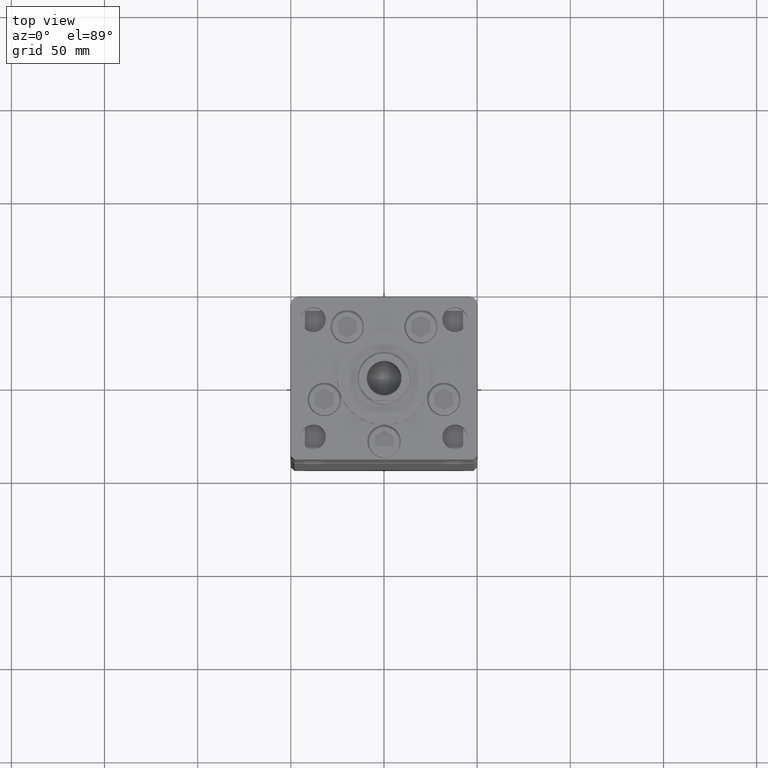
[diagram: clean part render]
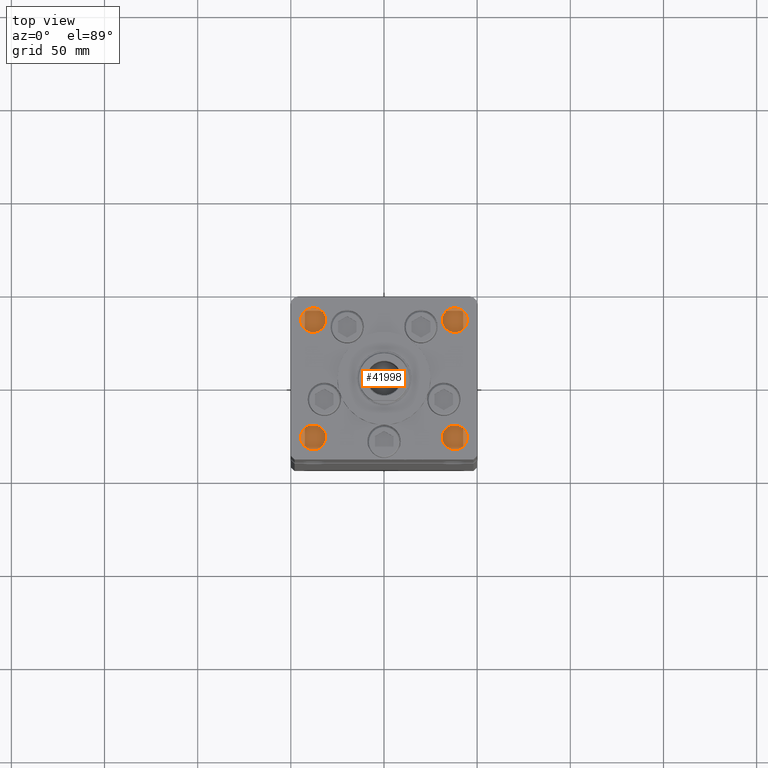
[diagram: same view with one face highlighted and labeled with its STEP entity id]
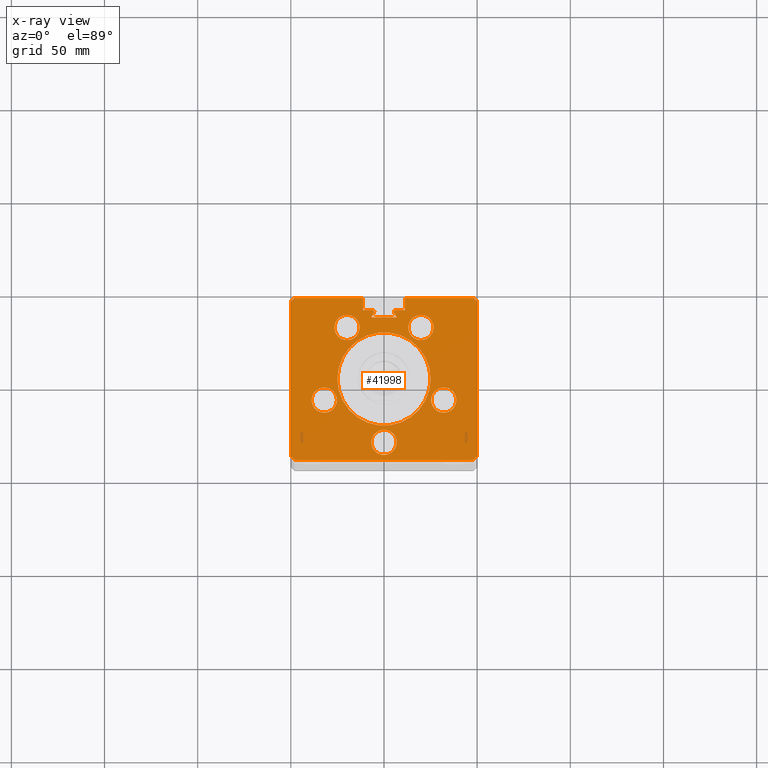
[diagram: x-ray of the same camera — body ghosted, the highlighted face saturated]
A machine part, top view. The second image highlights one B-rep face of the part: STEP entity #41998.
The next image is the same camera in x-ray: the body ghosted, the highlighted face saturated — about 0% of this face is hidden behind the body in this view.
In plain terms, the highlighted planar face has unit normal (0, 0, -1).
Its self-contained STEP definition (entity closure, byte-faithful):
#24 = DIRECTION ( 'NONE',  ( 0.000000000000000000, 0.000000000000000000, 1.000000000000000000 ) ) ;
#256 = CARTESIAN_POINT ( 'NONE',  ( -19.44653440471351757, 11.22746187336663404, 318.5000000000000000 ) ) ;
#376 = CIRCLE ( 'NONE', #26269, 25.00000000000000000 ) ;
#410 = AXIS2_PLACEMENT_3D ( 'NONE', #46332, #42313, #9001 ) ;
#682 = ORIENTED_EDGE ( 'NONE', *, *, #19699, .F. ) ;
#1000 = ORIENTED_EDGE ( 'NONE', *, *, #1067, .F. ) ;
#1067 = EDGE_CURVE ( 'NONE', #25104, #44319, #18560, .T. ) ;
#1149 = DIRECTION ( 'NONE',  ( 0.000000000000000000, 1.000000000000000000, 0.000000000000000000 ) ) ;
#1489 = CARTESIAN_POINT ( 'NONE',  ( -6.749999999999997335, -34.00000000000000000, 318.5000000000000000 ) ) ;
#1673 = LINE ( 'NONE', #37676, #43366 ) ;
#1701 = DIRECTION ( 'NONE',  ( 1.000000000000000000, 0.000000000000000000, 0.000000000000000000 ) ) ;
#1715 = VERTEX_POINT ( 'NONE', #1489 ) ;
#2158 = CARTESIAN_POINT ( 'NONE',  ( 0.000000000000000000, 37.00000000000000000, 318.5000000000000000 ) ) ;
#2252 = ORIENTED_EDGE ( 'NONE', *, *, #20093, .F. ) ;
#2256 = FACE_BOUND ( 'NONE', #48789, .T. ) ;
#2552 = DIRECTION ( 'NONE',  ( 0.000000000000000000, 0.000000000000000000, -1.000000000000000000 ) ) ;
#2677 = DIRECTION ( 'NONE',  ( 1.000000000000000000, 0.000000000000000000, 0.000000000000000000 ) ) ;
#2735 = VERTEX_POINT ( 'NONE', #9646 ) ;
#2835 = ORIENTED_EDGE ( 'NONE', *, *, #26203, .F. ) ;
#2886 = VERTEX_POINT ( 'NONE', #32154 ) ;
#3299 = PLANE ( 'NONE',  #12076 ) ;
#3512 = VECTOR ( 'NONE', #7300, 1000.000000000000000 ) ;
#3646 = DIRECTION ( 'NONE',  ( 0.000000000000000000, 0.000000000000000000, 1.000000000000000000 ) ) ;
#3833 = LINE ( 'NONE', #33644, #21847 ) ;
#3968 = VERTEX_POINT ( 'NONE', #32359 ) ;
#4406 = VERTEX_POINT ( 'NONE', #25247 ) ;
#4837 = LINE ( 'NONE', #256, #12114 ) ;
#5100 = VECTOR ( 'NONE', #6325, 1000.000000000000000 ) ;
#5757 = AXIS2_PLACEMENT_3D ( 'NONE', #27916, #39491, #2677 ) ;
#5768 = CARTESIAN_POINT ( 'NONE',  ( 5.375042956467946276, 35.59999999999899245, 318.5000000000000000 ) ) ;
#5885 = CARTESIAN_POINT ( 'NONE',  ( 6.876153656360465050, 32.99999999999986500, 318.5000000000000000 ) ) ;
#5986 = ORIENTED_EDGE ( 'NONE', *, *, #41509, .T. ) ;
#6325 = DIRECTION ( 'NONE',  ( -1.000000000000000000, 0.000000000000000000, 0.000000000000000000 ) ) ;
#6543 = FACE_BOUND ( 'NONE', #41444, .T. ) ;
#6767 = DIRECTION ( 'NONE',  ( 1.000000000000000000, 0.000000000000000000, 0.000000000000000000 ) ) ;
#6792 = CIRCLE ( 'NONE', #45397, 6.749999999999999112 ) ;
#7300 = DIRECTION ( 'NONE',  ( 3.344045254895050973E-16, -1.000000000000000000, 0.000000000000000000 ) ) ;
#7327 = FACE_BOUND ( 'NONE', #16355, .T. ) ;
#7475 = DIRECTION ( 'NONE',  ( -1.000000000000000000, 0.000000000000000000, 0.000000000000000000 ) ) ;
#7658 = CIRCLE ( 'NONE', #34249, 0.9333333333339999260 ) ;
#7872 = CIRCLE ( 'NONE', #37924, 0.9333333333339999260 ) ;
#7874 = ORIENTED_EDGE ( 'NONE', *, *, #34498, .T. ) ;
#8017 = CARTESIAN_POINT ( 'NONE',  ( 0.000000000000000000, 37.00000000000000000, 318.5000000000000000 ) ) ;
#8676 = VERTEX_POINT ( 'NONE', #20878 ) ;
#8789 = ORIENTED_EDGE ( 'NONE', *, *, #47474, .T. ) ;
#9001 = DIRECTION ( 'NONE',  ( 1.000000000000000000, 0.000000000000000000, 0.000000000000000000 ) ) ;
#9207 = LINE ( 'NONE', #37951, #30165 ) ;
#9330 = ORIENTED_EDGE ( 'NONE', *, *, #47670, .T. ) ;
#9646 = CARTESIAN_POINT ( 'NONE',  ( 11.24999999999999645, 37.00000000000000000, 318.5000000000000000 ) ) ;
#9771 = DIRECTION ( 'NONE',  ( 0.000000000000000000, 0.000000000000000000, -1.000000000000000000 ) ) ;
#9853 = LINE ( 'NONE', #13606, #48889 ) ;
#10555 = VERTEX_POINT ( 'NONE', #15219 ) ;
#10687 = AXIS2_PLACEMENT_3D ( 'NONE', #37035, #49406, #41071 ) ;
#10916 = CIRCLE ( 'NONE', #5757, 6.749999999999999112 ) ;
#11601 = LINE ( 'NONE', #52173, #3512 ) ;
#12076 = AXIS2_PLACEMENT_3D ( 'NONE', #47127, #26729, #18641 ) ;
#12114 = VECTOR ( 'NONE', #12629, 1000.000000000000114 ) ;
#12277 = CARTESIAN_POINT ( 'NONE',  ( 6.750000000000000888, -34.00000000000000000, 318.5000000000000000 ) ) ;
#12397 = EDGE_CURVE ( 'NONE', #13906, #31707, #7872, .T. ) ;
#12471 = CIRCLE ( 'NONE', #17621, 6.749999999999999112 ) ;
#12629 = DIRECTION ( 'NONE',  ( 0.4999999999999987788, 0.8660254037844392627, 0.000000000000000000 ) ) ;
#13023 = DIRECTION ( 'NONE',  ( 1.000000000000000000, 0.000000000000000000, 0.000000000000000000 ) ) ;
#13091 = ORIENTED_EDGE ( 'NONE', *, *, #18840, .F. ) ;
#13097 = ORIENTED_EDGE ( 'NONE', *, *, #20689, .F. ) ;
#13282 = DIRECTION ( 'NONE',  ( 0.000000000000000000, 0.000000000000000000, 1.000000000000000000 ) ) ;
#13472 = CARTESIAN_POINT ( 'NONE',  ( -48.00000000000000711, 43.50000000000000000, 318.5000000000000000 ) ) ;
#13606 = CARTESIAN_POINT ( 'NONE',  ( -47.99999999999998579, -43.50000000000000000, 318.5000000000000000 ) ) ;
#13906 = VERTEX_POINT ( 'NONE', #24966 ) ;
#13989 = LINE ( 'NONE', #2158, #43576 ) ;
#14276 = CARTESIAN_POINT ( 'NONE',  ( 0.000000000000000000, 0.000000000000000000, 318.5000000000000000 ) ) ;
#14473 = CARTESIAN_POINT ( 'NONE',  ( -50.00000000000001421, 41.49999999999999289, 318.5000000000000000 ) ) ;
#14620 = DIRECTION ( 'NONE',  ( 1.000000000000000000, 0.000000000000000000, 0.000000000000000000 ) ) ;
#15201 = ORIENTED_EDGE ( 'NONE', *, *, #17055, .F. ) ;
#15219 = CARTESIAN_POINT ( 'NONE',  ( -25.30550741379015278, -11.33333333333334458, 318.5000000000000000 ) ) ;
#15394 = FACE_BOUND ( 'NONE', #28006, .T. ) ;
#15919 = CARTESIAN_POINT ( 'NONE',  ( -11.24999999999999645, 37.00000000000000000, 318.5000000000000000 ) ) ;
#15950 = CARTESIAN_POINT ( 'NONE',  ( 19.44653440471351757, 11.22746187336663404, 318.5000000000000000 ) ) ;
#16355 = EDGE_LOOP ( 'NONE', ( #2252, #13097 ) ) ;
#16611 = CARTESIAN_POINT ( 'NONE',  ( -5.249999999999995559, 36.06666666666599497, 318.5000000000000000 ) ) ;
#16766 = CIRCLE ( 'NONE', #46820, 6.749999999999999112 ) ;
#16924 = CARTESIAN_POINT ( 'NONE',  ( 11.24999999999999645, 0.000000000000000000, 318.5000000000000000 ) ) ;
#17055 = EDGE_CURVE ( 'NONE', #51735, #25104, #3833, .T. ) ;
#17621 = AXIS2_PLACEMENT_3D ( 'NONE', #46277, #25883, #26147 ) ;
#17805 = DIRECTION ( 'NONE',  ( -0.7071067811865474617, -0.7071067811865474617, 0.000000000000000000 ) ) ;
#18053 = DIRECTION ( 'NONE',  ( -0.000000000000000000, 0.000000000000000000, 1.000000000000000000 ) ) ;
#18080 = CIRCLE ( 'NONE', #25800, 6.749999999999999112 ) ;
#18171 = ORIENTED_EDGE ( 'NONE', *, *, #12397, .F. ) ;
#18496 = VERTEX_POINT ( 'NONE', #5768 ) ;
#18512 = CARTESIAN_POINT ( 'NONE',  ( 38.80550741379015278, -11.33333333333334103, 318.5000000000000000 ) ) ;
#18560 = LINE ( 'NONE', #34936, #21299 ) ;
#18641 = DIRECTION ( 'NONE',  ( -1.000000000000000000, 0.000000000000000000, -0.000000000000000000 ) ) ;
#18676 = CARTESIAN_POINT ( 'NONE',  ( -6.183333333333996151, 36.06666666666599497, 318.5000000000000000 ) ) ;
#18840 = EDGE_CURVE ( 'NONE', #32420, #35905, #50236, .T. ) ;
#18950 = VECTOR ( 'NONE', #48210, 1000.000000000000114 ) ;
#19699 = EDGE_CURVE ( 'NONE', #10555, #35009, #16766, .T. ) ;
#19932 = CARTESIAN_POINT ( 'NONE',  ( -32.05550741379015278, -11.33333333333334458, 318.5000000000000000 ) ) ;
#20029 = CARTESIAN_POINT ( 'NONE',  ( -47.99999999999998579, -43.50000000000000000, 318.5000000000000000 ) ) ;
#20093 = EDGE_CURVE ( 'NONE', #31795, #51187, #28815, .T. ) ;
#20196 = CARTESIAN_POINT ( 'NONE',  ( -13.07068048781374259, 27.62499999999999645, 318.5000000000000000 ) ) ;
#20220 = DIRECTION ( 'NONE',  ( 1.000000000000000000, 0.000000000000000000, 0.000000000000000000 ) ) ;
#20445 = DIRECTION ( 'NONE',  ( 1.000000000000000000, 0.000000000000000000, 0.000000000000000000 ) ) ;
#20633 = VERTEX_POINT ( 'NONE', #41972 ) ;
#20689 = EDGE_CURVE ( 'NONE', #51187, #31795, #376, .T. ) ;
#20769 = ORIENTED_EDGE ( 'NONE', *, *, #41847, .F. ) ;
#20878 = CARTESIAN_POINT ( 'NONE',  ( -49.99999999999998579, -41.49999999999999289, 318.5000000000000000 ) ) ;
#20985 = AXIS2_PLACEMENT_3D ( 'NONE', #51169, #39339, #14620 ) ;
#21299 = VECTOR ( 'NONE', #47308, 1000.000000000000000 ) ;
#21437 = EDGE_CURVE ( 'NONE', #48534, #4406, #45022, .T. ) ;
#21572 = EDGE_CURVE ( 'NONE', #31707, #2886, #36433, .T. ) ;
#21787 = DIRECTION ( 'NONE',  ( -1.000000000000000000, 0.000000000000000000, 0.000000000000000000 ) ) ;
#21847 = VECTOR ( 'NONE', #20220, 1000.000000000000000 ) ;
#21884 = CARTESIAN_POINT ( 'NONE',  ( -11.24999999999999645, 43.50000000000000000, 318.5000000000000000 ) ) ;
#22230 = EDGE_CURVE ( 'NONE', #8676, #42929, #39409, .T. ) ;
#22323 = CARTESIAN_POINT ( 'NONE',  ( 49.99999999999998579, -41.49999999999999289, 318.5000000000000000 ) ) ;
#22402 = VECTOR ( 'NONE', #24941, 1000.000000000000000 ) ;
#22461 = CARTESIAN_POINT ( 'NONE',  ( 0.000000000000000000, 32.99999999999986500, 318.5000000000000000 ) ) ;
#22672 = EDGE_CURVE ( 'NONE', #1715, #32788, #12471, .T. ) ;
#22692 = EDGE_CURVE ( 'NONE', #35290, #20633, #1673, .T. ) ;
#22925 = CARTESIAN_POINT ( 'NONE',  ( 6.183333333333996151, 36.06666666666599497, 318.5000000000000000 ) ) ;
#23169 = ORIENTED_EDGE ( 'NONE', *, *, #31154, .T. ) ;
#23241 = DIRECTION ( 'NONE',  ( 1.000000000000000000, 0.000000000000000000, 0.000000000000000000 ) ) ;
#23277 = VERTEX_POINT ( 'NONE', #18512 ) ;
#23717 = VECTOR ( 'NONE', #48638, 1000.000000000000000 ) ;
#23827 = ORIENTED_EDGE ( 'NONE', *, *, #22692, .F. ) ;
#23837 = CARTESIAN_POINT ( 'NONE',  ( -6.876153656360465050, 32.99999999999986500, 318.5000000000000000 ) ) ;
#24941 = DIRECTION ( 'NONE',  ( -3.344045254895050973E-16, -1.000000000000000000, 0.000000000000000000 ) ) ;
#24966 = CARTESIAN_POINT ( 'NONE',  ( -6.183333333333996151, 37.00000000000000000, 318.5000000000000000 ) ) ;
#25104 = VERTEX_POINT ( 'NONE', #37336 ) ;
#25208 = CARTESIAN_POINT ( 'NONE',  ( 19.82068048781374259, 27.62500000000000000, 318.5000000000000000 ) ) ;
#25247 = CARTESIAN_POINT ( 'NONE',  ( 26.57068048781373903, 27.62500000000000000, 318.5000000000000000 ) ) ;
#25273 = LINE ( 'NONE', #16924, #23717 ) ;
#25800 = AXIS2_PLACEMENT_3D ( 'NONE', #33963, #13282, #29683 ) ;
#25883 = DIRECTION ( 'NONE',  ( 0.000000000000000000, 0.000000000000000000, 1.000000000000000000 ) ) ;
#25982 = EDGE_CURVE ( 'NONE', #51735, #2735, #25273, .T. ) ;
#26147 = DIRECTION ( 'NONE',  ( 1.000000000000000000, 0.000000000000000000, 0.000000000000000000 ) ) ;
#26203 = EDGE_CURVE ( 'NONE', #35009, #10555, #45131, .T. ) ;
#26269 = AXIS2_PLACEMENT_3D ( 'NONE', #14276, #18053, #34428 ) ;
#26725 = ORIENTED_EDGE ( 'NONE', *, *, #33865, .F. ) ;
#26729 = DIRECTION ( 'NONE',  ( 0.000000000000000000, 0.000000000000000000, -1.000000000000000000 ) ) ;
#27067 = ORIENTED_EDGE ( 'NONE', *, *, #35470, .T. ) ;
#27757 = EDGE_CURVE ( 'NONE', #32788, #1715, #10916, .T. ) ;
#27863 = VECTOR ( 'NONE', #43963, 1000.000000000000114 ) ;
#27876 = ORIENTED_EDGE ( 'NONE', *, *, #34772, .F. ) ;
#27916 = CARTESIAN_POINT ( 'NONE',  ( 2.081899558550500280E-15, -34.00000000000000000, 318.5000000000000000 ) ) ;
#28006 = EDGE_LOOP ( 'NONE', ( #27876, #13091 ) ) ;
#28057 = ORIENTED_EDGE ( 'NONE', *, *, #21437, .F. ) ;
#28307 = ORIENTED_EDGE ( 'NONE', *, *, #22672, .F. ) ;
#28456 = VECTOR ( 'NONE', #13023, 1000.000000000000000 ) ;
#28706 = LINE ( 'NONE', #41320, #22402 ) ;
#28815 = CIRCLE ( 'NONE', #10687, 25.00000000000000000 ) ;
#28900 = DIRECTION ( 'NONE',  ( 1.000000000000000000, 0.000000000000000000, 0.000000000000000000 ) ) ;
#28929 = VERTEX_POINT ( 'NONE', #14473 ) ;
#29373 = DIRECTION ( 'NONE',  ( -0.7071067811865487940, -0.7071067811865463515, 0.000000000000000000 ) ) ;
#29508 = DIRECTION ( 'NONE',  ( 0.000000000000000000, 0.000000000000000000, 1.000000000000000000 ) ) ;
#29654 = CARTESIAN_POINT ( 'NONE',  ( -11.24999999999999645, 0.000000000000000000, 318.5000000000000000 ) ) ;
#29683 = DIRECTION ( 'NONE',  ( 1.000000000000000000, 0.000000000000000000, 0.000000000000000000 ) ) ;
#29721 = VERTEX_POINT ( 'NONE', #5885 ) ;
#30165 = VECTOR ( 'NONE', #29373, 1000.000000000000000 ) ;
#30204 = AXIS2_PLACEMENT_3D ( 'NONE', #25208, #29508, #45331 ) ;
#30251 = DIRECTION ( 'NONE',  ( 0.000000000000000000, 0.000000000000000000, 1.000000000000000000 ) ) ;
#31154 = EDGE_CURVE ( 'NONE', #42028, #33691, #40918, .T. ) ;
#31232 = CARTESIAN_POINT ( 'NONE',  ( -19.82068048781374259, 27.62499999999999645, 318.5000000000000000 ) ) ;
#31523 = EDGE_CURVE ( 'NONE', #13906, #42028, #13989, .T. ) ;
#31707 = VERTEX_POINT ( 'NONE', #16611 ) ;
#31752 = ORIENTED_EDGE ( 'NONE', *, *, #45338, .T. ) ;
#31795 = VERTEX_POINT ( 'NONE', #46708 ) ;
#32116 = ORIENTED_EDGE ( 'NONE', *, *, #44961, .F. ) ;
#32154 = CARTESIAN_POINT ( 'NONE',  ( -5.375042956467946276, 35.59999999999899245, 318.5000000000000000 ) ) ;
#32359 = CARTESIAN_POINT ( 'NONE',  ( 6.183333333333996151, 37.00000000000000000, 318.5000000000000000 ) ) ;
#32420 = VERTEX_POINT ( 'NONE', #39768 ) ;
#32559 = EDGE_LOOP ( 'NONE', ( #47785, #28307 ) ) ;
#32788 = VERTEX_POINT ( 'NONE', #12277 ) ;
#33182 = DIRECTION ( 'NONE',  ( 0.000000000000000000, 0.000000000000000000, 1.000000000000000000 ) ) ;
#33644 = CARTESIAN_POINT ( 'NONE',  ( -11.24999999999999645, 43.50000000000000000, 318.5000000000000000 ) ) ;
#33691 = VERTEX_POINT ( 'NONE', #37824 ) ;
#33865 = EDGE_CURVE ( 'NONE', #43402, #23277, #40231, .T. ) ;
#33963 = CARTESIAN_POINT ( 'NONE',  ( 32.05550741379015278, -11.33333333333334103, 318.5000000000000000 ) ) ;
#34249 = AXIS2_PLACEMENT_3D ( 'NONE', #22925, #9771, #1701 ) ;
#34428 = DIRECTION ( 'NONE',  ( 1.000000000000000000, 0.000000000000000000, 0.000000000000000000 ) ) ;
#34498 = EDGE_CURVE ( 'NONE', #2735, #3968, #49657, .T. ) ;
#34772 = EDGE_CURVE ( 'NONE', #35905, #32420, #6792, .T. ) ;
#34809 = LINE ( 'NONE', #22461, #5100 ) ;
#34936 = CARTESIAN_POINT ( 'NONE',  ( 48.00000000000000711, 43.50000000000000000, 318.5000000000000000 ) ) ;
#35009 = VERTEX_POINT ( 'NONE', #39042 ) ;
#35099 = VECTOR ( 'NONE', #7475, 1000.000000000000000 ) ;
#35290 = VERTEX_POINT ( 'NONE', #22323 ) ;
#35470 = EDGE_CURVE ( 'NONE', #29721, #40324, #34809, .T. ) ;
#35841 = LINE ( 'NONE', #15950, #18950 ) ;
#35905 = VERTEX_POINT ( 'NONE', #20196 ) ;
#36155 = CARTESIAN_POINT ( 'NONE',  ( -49.99999999999998579, -41.49999999999999289, 318.5000000000000000 ) ) ;
#36433 = CIRCLE ( 'NONE', #20985, 0.9333333333339999260 ) ;
#36552 = ORIENTED_EDGE ( 'NONE', *, *, #47037, .F. ) ;
#37035 = CARTESIAN_POINT ( 'NONE',  ( 0.000000000000000000, 0.000000000000000000, 318.5000000000000000 ) ) ;
#37080 = CARTESIAN_POINT ( 'NONE',  ( 13.07068048781374081, 27.62500000000000000, 318.5000000000000000 ) ) ;
#37336 = CARTESIAN_POINT ( 'NONE',  ( 48.00000000000000711, 43.50000000000000000, 318.5000000000000000 ) ) ;
#37676 = CARTESIAN_POINT ( 'NONE',  ( 49.99999999999998579, -41.49999999999999289, 318.5000000000000000 ) ) ;
#37766 = DIRECTION ( 'NONE',  ( 1.000000000000000000, 0.000000000000000000, 0.000000000000000000 ) ) ;
#37824 = CARTESIAN_POINT ( 'NONE',  ( -11.24999999999999645, 43.50000000000000000, 318.5000000000000000 ) ) ;
#37924 = AXIS2_PLACEMENT_3D ( 'NONE', #18676, #2552, #23241 ) ;
#37951 = CARTESIAN_POINT ( 'NONE',  ( -48.00000000000000711, 43.50000000000000000, 318.5000000000000000 ) ) ;
#38150 = CARTESIAN_POINT ( 'NONE',  ( 25.30550741379015278, -11.33333333333334103, 318.5000000000000000 ) ) ;
#38583 = ORIENTED_EDGE ( 'NONE', *, *, #22230, .T. ) ;
#38700 = EDGE_CURVE ( 'NONE', #18496, #3968, #7658, .T. ) ;
#38790 = CIRCLE ( 'NONE', #30204, 6.749999999999999112 ) ;
#39042 = CARTESIAN_POINT ( 'NONE',  ( -38.80550741379015278, -11.33333333333334458, 318.5000000000000000 ) ) ;
#39068 = FACE_BOUND ( 'NONE', #32559, .T. ) ;
#39124 = ORIENTED_EDGE ( 'NONE', *, *, #31523, .T. ) ;
#39339 = DIRECTION ( 'NONE',  ( 0.000000000000000000, 0.000000000000000000, -1.000000000000000000 ) ) ;
#39409 = LINE ( 'NONE', #36155, #27863 ) ;
#39491 = DIRECTION ( 'NONE',  ( 0.000000000000000000, 0.000000000000000000, 1.000000000000000000 ) ) ;
#39768 = CARTESIAN_POINT ( 'NONE',  ( -26.57068048781373903, 27.62499999999999645, 318.5000000000000000 ) ) ;
#40231 = CIRCLE ( 'NONE', #53067, 6.749999999999999112 ) ;
#40324 = VERTEX_POINT ( 'NONE', #23837 ) ;
#40611 = CARTESIAN_POINT ( 'NONE',  ( 25.00000000000000000, 3.061616997868383043E-15, 318.5000000000000000 ) ) ;
#40734 = ORIENTED_EDGE ( 'NONE', *, *, #46063, .F. ) ;
#40918 = LINE ( 'NONE', #29654, #52993 ) ;
#41071 = DIRECTION ( 'NONE',  ( 1.000000000000000000, 0.000000000000000000, 0.000000000000000000 ) ) ;
#41320 = CARTESIAN_POINT ( 'NONE',  ( 50.00000000000001421, 41.49999999999999289, 318.5000000000000000 ) ) ;
#41444 = EDGE_LOOP ( 'NONE', ( #682, #2835 ) ) ;
#41467 = ORIENTED_EDGE ( 'NONE', *, *, #25982, .T. ) ;
#41485 = CARTESIAN_POINT ( 'NONE',  ( 11.24999999999998934, 43.50000000000000000, 318.5000000000000000 ) ) ;
#41509 = EDGE_CURVE ( 'NONE', #42929, #20633, #9853, .T. ) ;
#41533 = CARTESIAN_POINT ( 'NONE',  ( -19.82068048781374259, 27.62499999999999645, 318.5000000000000000 ) ) ;
#41653 = CARTESIAN_POINT ( 'NONE',  ( 50.00000000000001421, 41.49999999999999289, 318.5000000000000000 ) ) ;
#41847 = EDGE_CURVE ( 'NONE', #23277, #43402, #18080, .T. ) ;
#41972 = CARTESIAN_POINT ( 'NONE',  ( 47.99999999999998579, -43.50000000000000000, 318.5000000000000000 ) ) ;
#41998 = ADVANCED_FACE ( 'NONE', ( #6543, #39068, #52202, #2256, #15394, #48173, #7327 ), #3299, .F. ) ;
#42028 = VERTEX_POINT ( 'NONE', #15919 ) ;
#42313 = DIRECTION ( 'NONE',  ( 0.000000000000000000, 0.000000000000000000, 1.000000000000000000 ) ) ;
#42888 = EDGE_LOOP ( 'NONE', ( #39124, #23169, #32116, #31752, #9330, #38583, #5986, #23827, #36552, #1000, #15201, #41467, #7874, #48548, #8789, #27067, #43570, #49870, #18171 ) ) ;
#42929 = VERTEX_POINT ( 'NONE', #20029 ) ;
#43366 = VECTOR ( 'NONE', #17805, 1000.000000000000114 ) ;
#43402 = VERTEX_POINT ( 'NONE', #38150 ) ;
#43461 = EDGE_CURVE ( 'NONE', #40324, #2886, #4837, .T. ) ;
#43570 = ORIENTED_EDGE ( 'NONE', *, *, #43461, .T. ) ;
#43576 = VECTOR ( 'NONE', #21787, 1000.000000000000000 ) ;
#43963 = DIRECTION ( 'NONE',  ( 0.7071067811865474617, -0.7071067811865474617, 0.000000000000000000 ) ) ;
#44215 = DIRECTION ( 'NONE',  ( 1.000000000000000000, 0.000000000000000000, 0.000000000000000000 ) ) ;
#44285 = AXIS2_PLACEMENT_3D ( 'NONE', #44473, #3646, #44215 ) ;
#44319 = VERTEX_POINT ( 'NONE', #41653 ) ;
#44473 = CARTESIAN_POINT ( 'NONE',  ( -32.05550741379015278, -11.33333333333334458, 318.5000000000000000 ) ) ;
#44961 = EDGE_CURVE ( 'NONE', #52150, #33691, #50640, .T. ) ;
#45022 = CIRCLE ( 'NONE', #410, 6.749999999999999112 ) ;
#45131 = CIRCLE ( 'NONE', #44285, 6.749999999999999112 ) ;
#45331 = DIRECTION ( 'NONE',  ( 1.000000000000000000, 0.000000000000000000, 0.000000000000000000 ) ) ;
#45338 = EDGE_CURVE ( 'NONE', #52150, #28929, #9207, .T. ) ;
#45397 = AXIS2_PLACEMENT_3D ( 'NONE', #41533, #30251, #37766 ) ;
#46063 = EDGE_CURVE ( 'NONE', #4406, #48534, #38790, .T. ) ;
#46277 = CARTESIAN_POINT ( 'NONE',  ( 2.081899558550500280E-15, -34.00000000000000000, 318.5000000000000000 ) ) ;
#46332 = CARTESIAN_POINT ( 'NONE',  ( 19.82068048781374259, 27.62500000000000000, 318.5000000000000000 ) ) ;
#46562 = DIRECTION ( 'NONE',  ( 0.000000000000000000, 0.000000000000000000, 1.000000000000000000 ) ) ;
#46708 = CARTESIAN_POINT ( 'NONE',  ( -25.00000000000000000, 0.000000000000000000, 318.5000000000000000 ) ) ;
#46820 = AXIS2_PLACEMENT_3D ( 'NONE', #19932, #24, #20445 ) ;
#47037 = EDGE_CURVE ( 'NONE', #44319, #35290, #28706, .T. ) ;
#47127 = CARTESIAN_POINT ( 'NONE',  ( 0.000000000000000000, 0.000000000000000000, 318.5000000000000000 ) ) ;
#47308 = DIRECTION ( 'NONE',  ( 0.7071067811865487940, -0.7071067811865463515, 0.000000000000000000 ) ) ;
#47474 = EDGE_CURVE ( 'NONE', #18496, #29721, #35841, .T. ) ;
#47669 = AXIS2_PLACEMENT_3D ( 'NONE', #31232, #46562, #6767 ) ;
#47670 = EDGE_CURVE ( 'NONE', #28929, #8676, #11601, .T. ) ;
#47785 = ORIENTED_EDGE ( 'NONE', *, *, #27757, .F. ) ;
#48173 = FACE_OUTER_BOUND ( 'NONE', #42888, .T. ) ;
#48210 = DIRECTION ( 'NONE',  ( 0.4999999999999987788, -0.8660254037844392627, 0.000000000000000000 ) ) ;
#48534 = VERTEX_POINT ( 'NONE', #37080 ) ;
#48548 = ORIENTED_EDGE ( 'NONE', *, *, #38700, .F. ) ;
#48638 = DIRECTION ( 'NONE',  ( -0.000000000000000000, -1.000000000000000000, 0.000000000000000000 ) ) ;
#48789 = EDGE_LOOP ( 'NONE', ( #40734, #28057 ) ) ;
#48802 = EDGE_LOOP ( 'NONE', ( #20769, #26725 ) ) ;
#48889 = VECTOR ( 'NONE', #50165, 1000.000000000000000 ) ;
#49406 = DIRECTION ( 'NONE',  ( -0.000000000000000000, 0.000000000000000000, 1.000000000000000000 ) ) ;
#49657 = LINE ( 'NONE', #8017, #35099 ) ;
#49870 = ORIENTED_EDGE ( 'NONE', *, *, #21572, .F. ) ;
#50165 = DIRECTION ( 'NONE',  ( 1.000000000000000000, 0.000000000000000000, 0.000000000000000000 ) ) ;
#50236 = CIRCLE ( 'NONE', #47669, 6.749999999999999112 ) ;
#50640 = LINE ( 'NONE', #21884, #28456 ) ;
#51169 = CARTESIAN_POINT ( 'NONE',  ( -6.183333333333996151, 36.06666666666599497, 318.5000000000000000 ) ) ;
#51187 = VERTEX_POINT ( 'NONE', #40611 ) ;
#51735 = VERTEX_POINT ( 'NONE', #41485 ) ;
#52150 = VERTEX_POINT ( 'NONE', #13472 ) ;
#52173 = CARTESIAN_POINT ( 'NONE',  ( -50.00000000000001421, 41.49999999999999289, 318.5000000000000000 ) ) ;
#52202 = FACE_BOUND ( 'NONE', #48802, .T. ) ;
#52555 = CARTESIAN_POINT ( 'NONE',  ( 32.05550741379015278, -11.33333333333334103, 318.5000000000000000 ) ) ;
#52993 = VECTOR ( 'NONE', #1149, 1000.000000000000000 ) ;
#53067 = AXIS2_PLACEMENT_3D ( 'NONE', #52555, #33182, #28900 ) ;